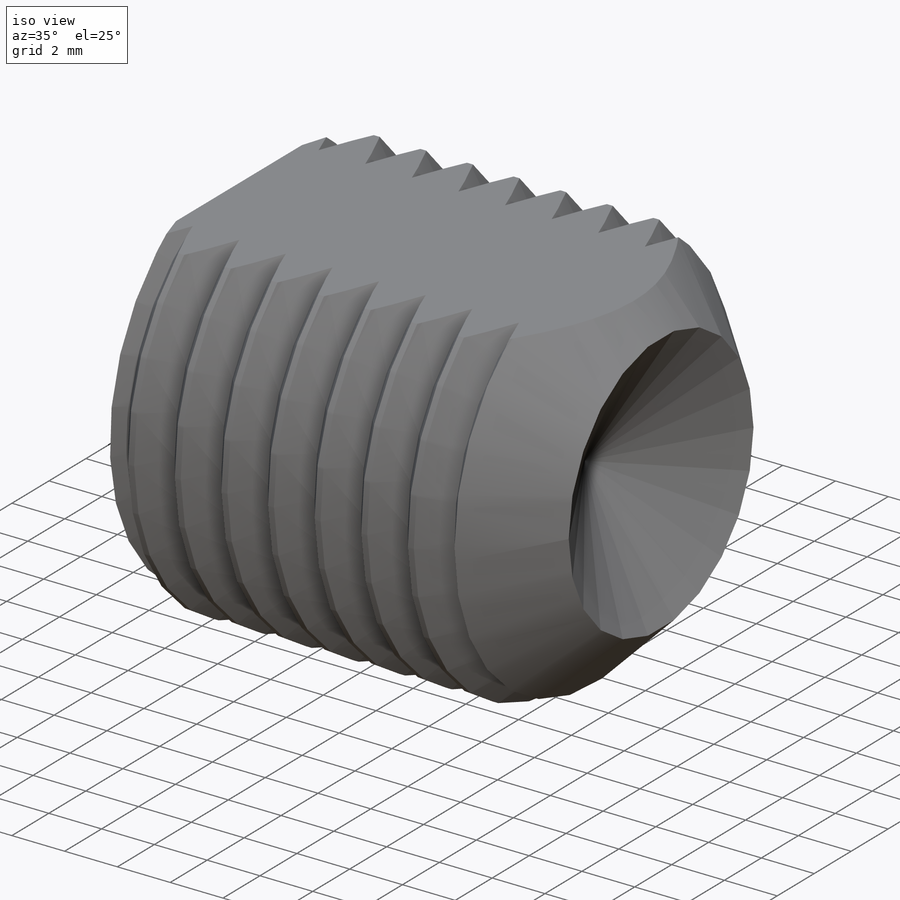
[diagram: iso view]
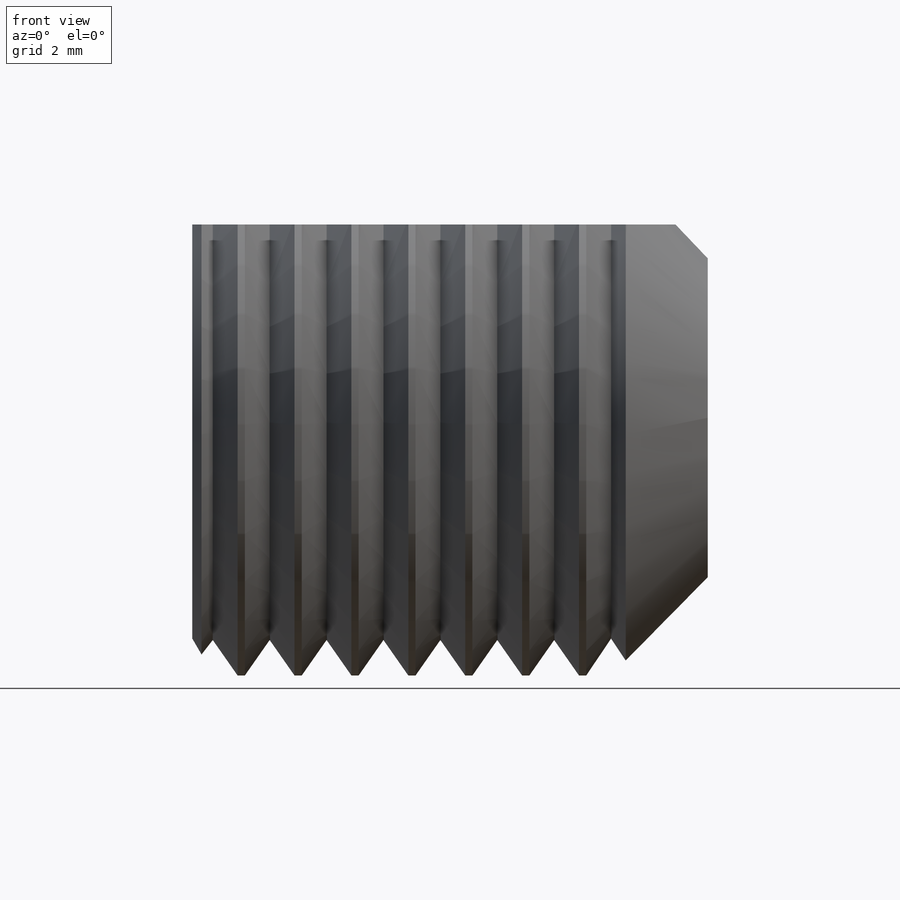
[diagram: front view]
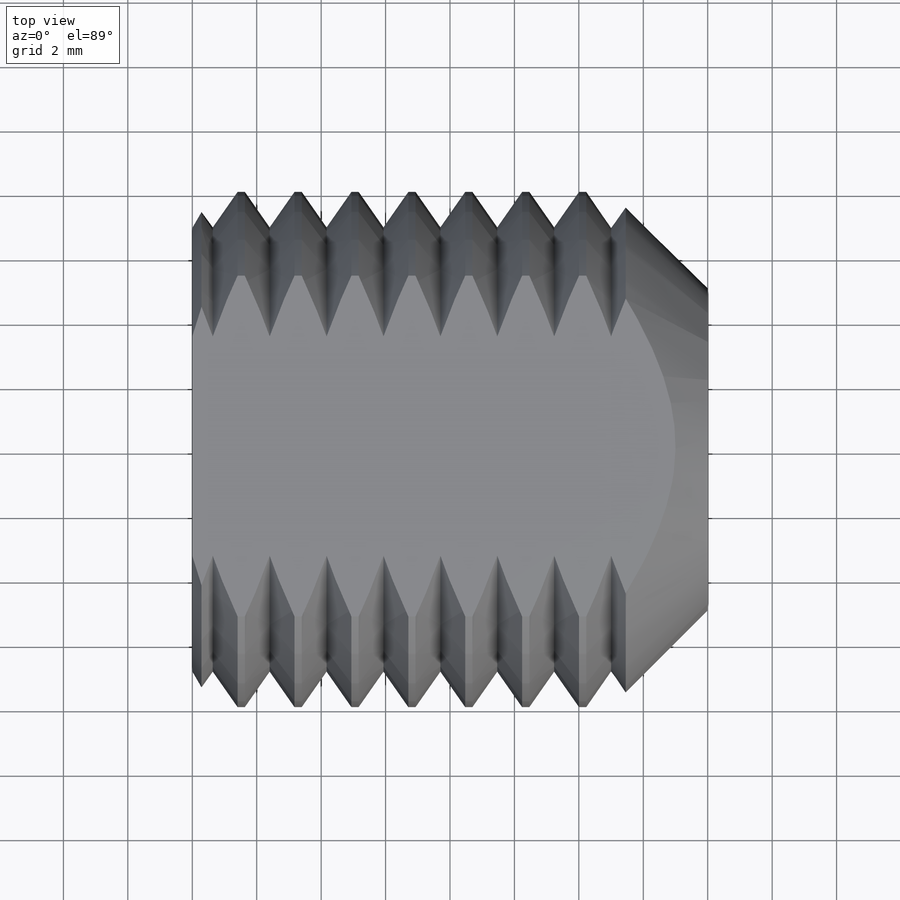
[diagram: top view]
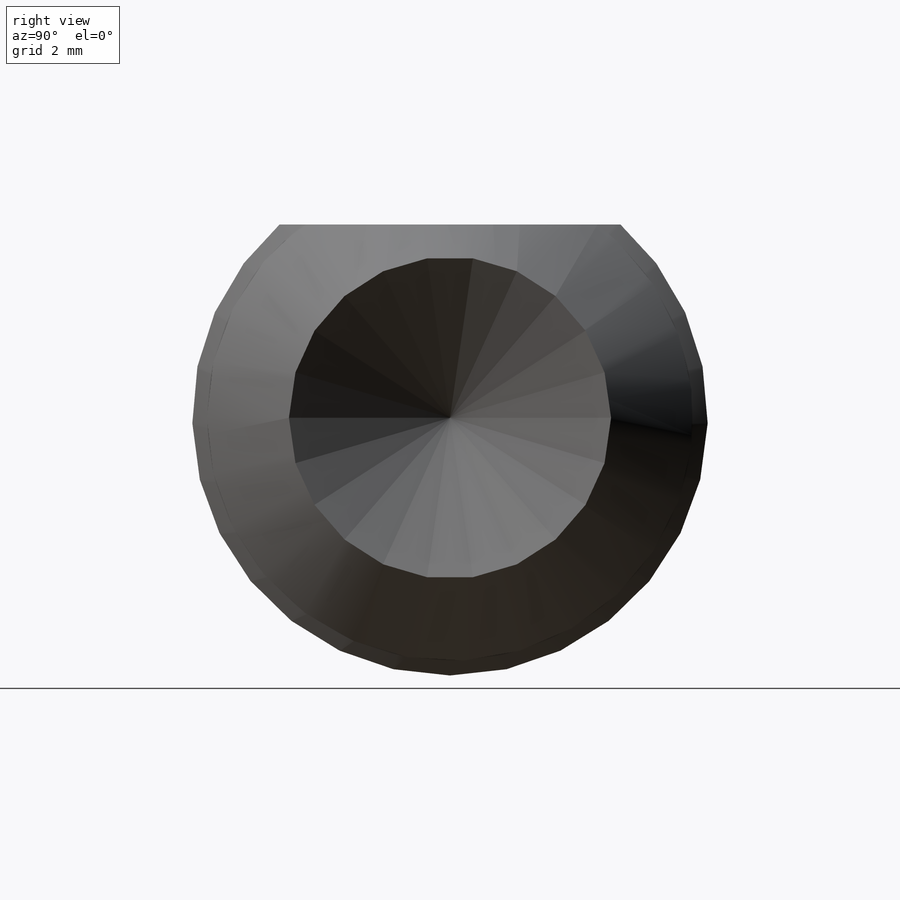
[diagram: right view]
SOLIDWORKS PART (.sldprt)
format: sldprt  version: not decoded by parser v0  size: 324,608 bytes
history: native  units: mm
features: plane x4, sketch x4, cut_extrude x2, material x1, revolve x1, thread x1, cut_revolve x1, pattern_linear x1 (+12 scaffold rows collapsed; 1 parser-record rows omitted)
feature tree (28):
  parser-record x1  (decoder bookkeeping rows leaked as tree rows — omitted from the tree; the rows remain in map.json)
  scaffold x12  (default folders/planes/origin — collapsed)
  material  "Material <not specified>"
  plane  "Plane1"
  plane  "Plane2"
  plane  "Plane3"
  sketch  "BodySke"  dims[c1.D1=~35.921024mm c2.D1=270.0deg c3.D1=~35.921024mm c3.Cone_ang=90.0deg c3.Length=50.8mm c3.Diameter=16.0mm c3.D4=~4.490128mm c3.Drive_ch_ang=60.0deg c3.Minor_dia=13.797mm c4.D1=~8.980256mm c4.Cup_nose_ang=45.0deg c5.D1=~7.099516mm c5.Cup_ang=120.0deg c5.Cup_dia=10.0mm c5.Length=16.0mm c5.Advance=2.1082mm c5.Head_ht=~1.88976mm c5.BodyLength=~43.94454mm c6.D1=~6.646804mm c6.Cup_nose_ang=45.0deg c6.Advance=2.0mm]
  revolve  "BaseBody"  [1 undecoded]
  thread  "ThreadCosmetic"  Diameter=13.797mm Thread_minor=13.797mm  [1 undecoded]
  sketch  "Sketch2"  dims[Hex_size=8.0mm D2=4.0mm D3=4.0mm]
  cut_extrude  "Hex"  Depth=6.4mm Key_eng=6.4mm
  sketch  "ThdSchSke"  dims[c1.Thread_minor=~1.03886mm c1.Diameter=~1.413535mm c1.Start=~0.988134mm c1.D4=~4.446753mm c1.Vee=60.0deg c2.Thread_minor=~1.03886mm c2.Start=~2.540025mm c2.D1=~0.108159mm c2.D2=~0.108159mm c3.D1=~0.216319mm c3.SideAngle=55.0deg c3.D2=~0.216319mm c3.VeeAngle=70.0deg c3.Thread_minor=13.797mm c3.Overcut=20.0mm c3.Diameter=16.0mm c3.D6=~8.326268mm c4.D1=~8.326268mm c5.D1=90.0deg c5.Start=63.5mm c6.Start=20.5486mm c7.Start=~1.88976mm]
  cut_revolve  "ThreadSchematic"  Angle=360deg
  pattern_linear  "ThdSchPat"  Count1=8 Count2=1 Spacing1=1.766293mm Spacing2=50mm Num_threads=8 Advance=1.766293mm ConfigurationName=0mm CopiedFlag=1 PartNumberID=0mm
  plane  "Plane4"  Offset=8mm
  sketch  "Sketch3"
  cut_extrude  "Cut-Extrude1"  Depth=2mm
decode coverage: 8 of 10 modeling features carry decoded parameters
note: ~ marks probable driven/reference dimensions
note: 2 parameter values undecoded
note: suppression state not decoded; provenance and decode notes live in map.json
